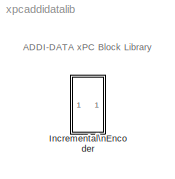
MODEL xpcaddidatalib
KIND library
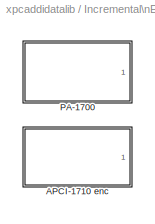
BLOCK [SubSystem] Incremental\nEncoder
  EnableExecutionContextPropagation = on
  MinAlgLoopOccurrences = off
  Ports = []
  TreatAsAtomicUnit = off
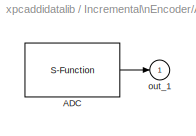
BLOCK [SubSystem] Incremental\nEncoder/APCI-1710 enc 
  EnableExecutionContextPropagation = on
  InitFcn = mapci1710(1);
  MaskCallbackString = ||||||
  MaskDescription = ADDI-DATA\nAPCI-1710\nIncremental Encoder
  MaskDisplay = disp('APCI-1710\\nADDI-DATA\\nIncremental Encoder')
  MaskEnableString = on,on,on,on,on,on,on
  MaskHelp = helpview(fullfile(docroot, 'mapfiles', 'xpc.map'), 'ADDI-DATA_APCI-1710-enc_Encoder')
  MaskIconFrame = on
  MaskIconOpaque = on
  MaskIconRotate = none
  MaskIconUnits = autoscale
  MaskPromptString = Function module:|Type of evaluation:|Mode:|Hysteresis:|Resolution:|Sample time:|PCI slot (-1: autosearch):
  MaskStyleString = popup(1|2|3|4),popup(Virtual Absolute|Reset and Index Output Up-Dating),popup(single|double|quadruple),popup(off|on),edit,edit,edit
  MaskTabNameString = ,,,,,,
  MaskToolTipString = on,on,on,on,on,on,on
  MaskTunableValueString = on,on,on,on,on,on,on
  MaskType = Incremental Encoder Module
  MaskValueString = 1|Virtual Absolute|single|off|4096|0.001|-1
  MaskVarAliasString = ,,,,,,
  MaskVariables = module=@1;reset=@2;mode=@3;hyst=@4;res=@5;sampletime=@6;pci_dev=@7;
  MaskVisibilityString = on,on,on,on,on,on,on
  MinAlgLoopOccurrences = off
  Ports = [0, 1]
  ShowPortLabels = off
  TreatAsAtomicUnit = off
BLOCK [S-Function] Incremental\nEncoder/APCI-1710 enc /ADC
  FunctionName = encadapci1710
  Parameters = reset,module, mode, hyst, res, sampletime, pci_dev
  Ports = [0, 1]
BLOCK [Outport] Incremental\nEncoder/APCI-1710 enc /out_1
  BusOutputAsStruct = off
  IconDisplay = Port number
  InitialOutput = 0
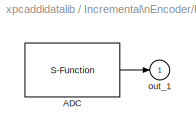
BLOCK [SubSystem] Incremental\nEncoder/PA-1700 
  EnableExecutionContextPropagation = on
  MaskCallbackString = |||||
  MaskDescription = ADDI-DATA\nPA-1700\nIncremental Encoder
  MaskDisplay = disp('PA1700\\nADDI-DATA\\nIncremental Encoder')
  MaskEnableString = on,on,on,on,on,on
  MaskHelp = helpview(fullfile(docroot, 'mapfiles', 'xpc.map'), 'ADDI-DATA_PA-1700_Encoder')
  MaskIconFrame = on
  MaskIconOpaque = on
  MaskIconRotate = none
  MaskIconUnits = autoscale
  MaskInitialization = reset=1;\nbaseaddress=hex2dec(baseaddress(3:end));
  MaskPromptString = Counter:|Mode:|Hysteresis:|Resolution:|Sample time:|Base address (i.e. 0xd000):
  MaskStyleString = popup(1|2|3),popup(single|double|quadruple),popup(off|on),edit,edit,edit
  MaskTabNameString = ,,,,,
  MaskToolTipString = on,on,on,on,on,on
  MaskTunableValueString = on,on,on,on,on,on
  MaskType = Incremental Encoder Module
  MaskValueString = 1|single|off|4096|0.001|0x300
  MaskVarAliasString = ,,,,,
  MaskVariables = counter=@1;mode=@2;hyst=@3;res=@4;sampletime=@5;baseaddress=&6;
  MaskVisibilityString = on,on,on,on,on,on
  MinAlgLoopOccurrences = off
  Ports = [0, 1]
  ShowPortLabels = off
  TreatAsAtomicUnit = off
BLOCK [S-Function] Incremental\nEncoder/PA-1700 /ADC
  FunctionName = encadpa1700
  Parameters = reset,counter, mode, hyst, res, sampletime, baseaddress
  Ports = [0, 1]
BLOCK [Outport] Incremental\nEncoder/PA-1700 /out_1
  BusOutputAsStruct = off
  IconDisplay = Port number
  InitialOutput = 0
ANNOTATION (root): ADDI-DATA xPC Block Library
LINE Incremental\nEncoder/APCI-1710 enc /ADC:1 -> Incremental\nEncoder/APCI-1710 enc /out_1:1
LINE Incremental\nEncoder/PA-1700 /ADC:1 -> Incremental\nEncoder/PA-1700 /out_1:1
